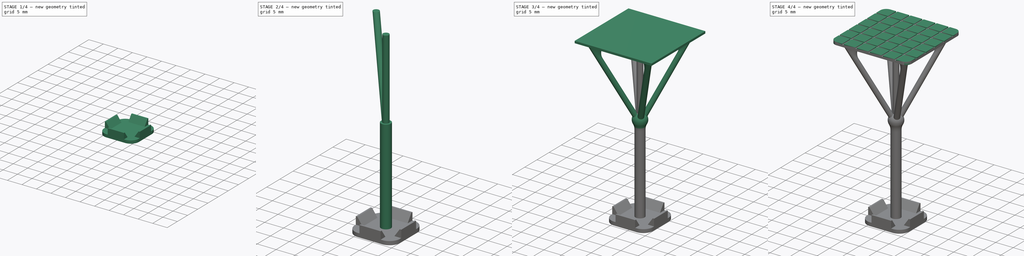
[diagram: build sequence overview — one tinted view per stage of 4, left to right]
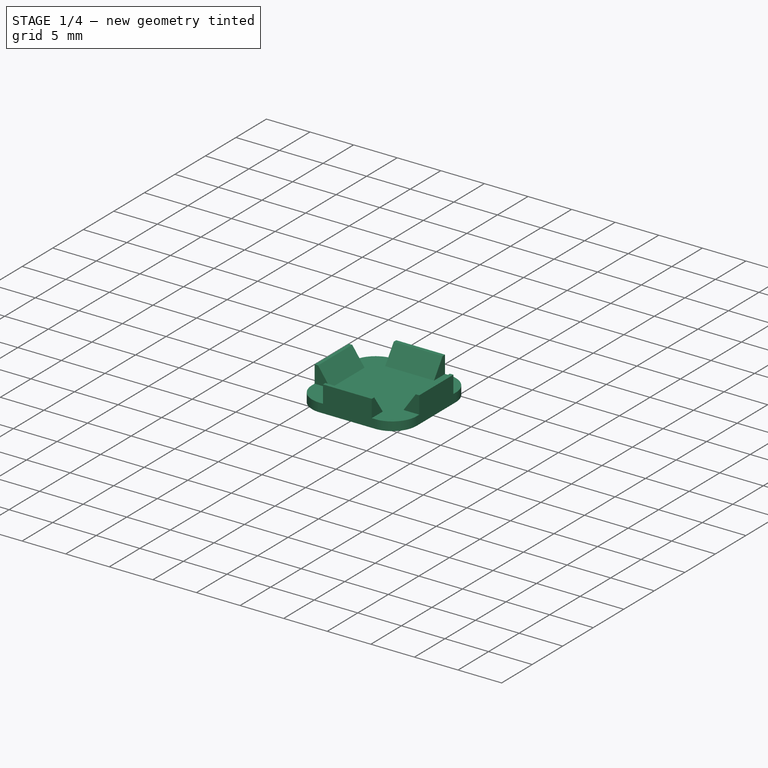
[diagram: stage 1 of 4 — iso view after this stage's code; geometry added in this stage tinted green]
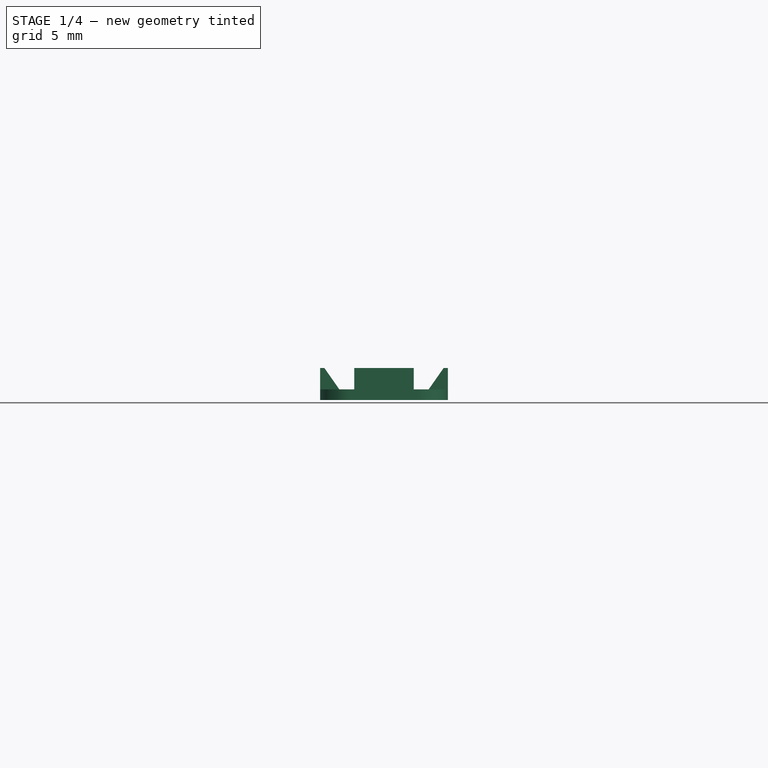
[diagram: stage 1 of 4 — front view after this stage's code; geometry added in this stage tinted green]
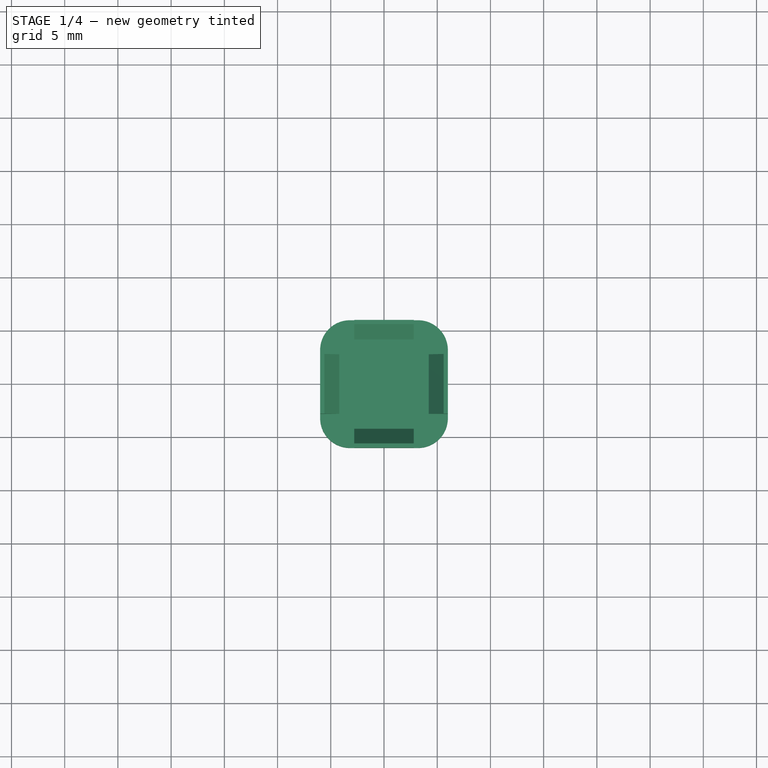
[diagram: stage 1 of 4 — top view after this stage's code; geometry added in this stage tinted green]
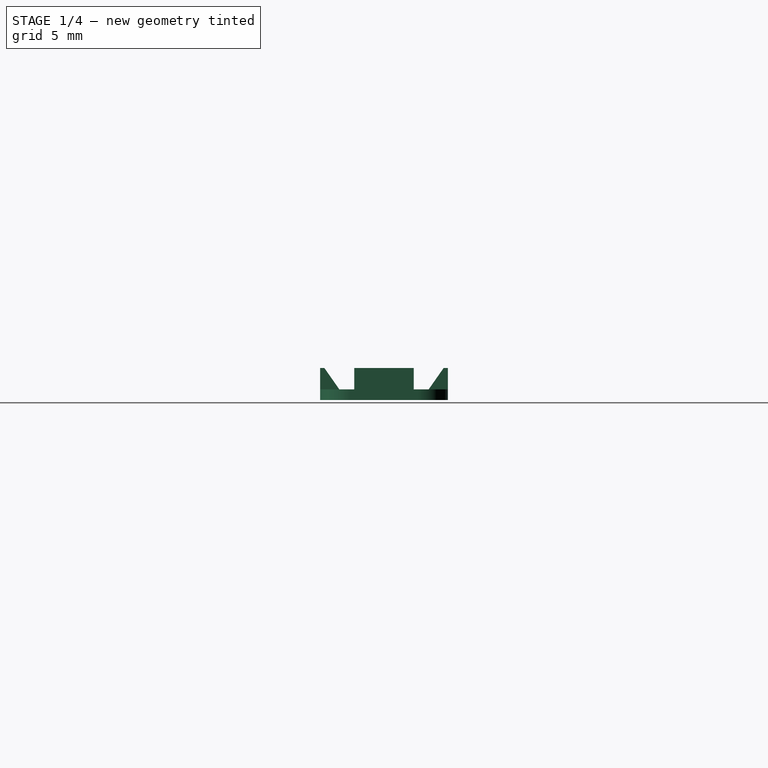
[diagram: stage 1 of 4 — right view after this stage's code; geometry added in this stage tinted green]
FCSTD DOCUMENT  (FreeCAD 1.0R38806 (Git))
Label: VatCleaningTool
License: All rights reserved
LicenseURL: http://en.wikipedia.org/wiki/All_rights_reserved
objects: Sketcher::SketchObject×12, PartDesign::Pad×5, PartDesign::AdditiveLoft×2, PartDesign::PolarPattern×2, PartDesign::LinearPattern×2, Spreadsheet::Sheet×1, PartDesign::Revolution×1, PartDesign::Fillet×1, PartDesign::MultiTransform×1, PartDesign::Pocket×1, PartDesign::Body×1
note: 65 computed .brp shape members not serialized (recipe doc carries the construction recipe); baked Part::Feature solids carry a one-line shape summary decoded from their .brp

FEATURE [Sketcher::SketchObject] Sketch  label="Template"
  ArcFitTolerance = 1e-06
  AttachmentSupport = -> [XY_Plane]
  FullyConstrained = true
  MakeInternals = false
  MapMode = 5
  expr: .Constraints.Width = <<Spreadsheet>>.BottomWidth
  expr: Constraints[44] = <<Spreadsheet>>.TopWidth
  expr: Constraints[71] = <<Spreadsheet>>.PillarFromEdge
  sketch-geometry (35):
    g0: LineSegment StartX=-6 StartY=3.2 StartZ=0 EndX=-6 EndY=-3.2 EndZ=0
    g1: LineSegment StartX=-3.2 StartY=-6 StartZ=0 EndX=3.2 EndY=-6 EndZ=0
    g2: LineSegment StartX=6 StartY=-3.2 StartZ=0 EndX=6 EndY=3.2 EndZ=0
    g3: LineSegment StartX=3.2 StartY=6 StartZ=0 EndX=-3.2 EndY=6 EndZ=0
    g4: LineSegment [constr] StartX=-6 StartY=-1e-16 StartZ=0 EndX=6 EndY=1e-16 EndZ=0
    g5: LineSegment [constr] StartX=0 StartY=6 StartZ=0 EndX=0 EndY=-6 EndZ=0
    g6: LineSegment StartX=-6 StartY=2.8 StartZ=0 EndX=-4.2 EndY=2.8 EndZ=0
    g7: LineSegment StartX=-4.2 StartY=2.8 StartZ=0 EndX=-4.2 EndY=-2.8 EndZ=0
    g8: LineSegment StartX=-4.2 StartY=-2.8 StartZ=0 EndX=-6 EndY=-2.8 EndZ=0
    g9: Circle CenterX=0 CenterY=0 CenterZ=0 NormalX=0 NormalY=0 NormalZ=1 AngleXU=0 Radius=1.3
    g10: Circle CenterX=-0.353553 CenterY=0.353553 CenterZ=0 NormalX=0 NormalY=0 NormalZ=1 AngleXU=0 Radius=0.8
    g11: Circle [constr] CenterX=0 CenterY=0 CenterZ=0 NormalX=0 NormalY=0 NormalZ=1 AngleXU=0 Radius=15.5563
    g12: LineSegment StartX=-11 StartY=11 StartZ=0 EndX=-11 EndY=-11 EndZ=0
    g13: LineSegment StartX=-11 StartY=-11 StartZ=0 EndX=11 EndY=-11 EndZ=0
    g14: LineSegment StartX=11 StartY=-11 StartZ=0 EndX=11 EndY=11 EndZ=0
    g15: LineSegment StartX=11 StartY=11 StartZ=0 EndX=-11 EndY=11 EndZ=0
    g16: GeomPoint [constr] X=-11 Y=11 Z=0
    g17: GeomPoint [constr] X=11 Y=-11 Z=0
    g18: Circle CenterX=-8.6 CenterY=8.6 CenterZ=0 NormalX=0 NormalY=0 NormalZ=1 AngleXU=0 Radius=0.8
    g19: ArcOfCircle CenterX=3.2 CenterY=3.2 CenterZ=0 NormalX=0 NormalY=0 NormalZ=1 AngleXU=0 Radius=2.8 StartAngle=0 EndAngle=1.5708
    g20: GeomPoint [constr] X=6 Y=6 Z=0
    g21: ArcOfCircle CenterX=-3.2 CenterY=3.2 CenterZ=0 NormalX=0 NormalY=0 NormalZ=1 AngleXU=0 Radius=2.8 StartAngle=1.5708 EndAngle=3.14159
    g22: GeomPoint [constr] X=-6 Y=6 Z=0
    g23: ArcOfCircle CenterX=-3.2 CenterY=-3.2 CenterZ=0 NormalX=0 NormalY=0 NormalZ=1 AngleXU=0 Radius=2.8 StartAngle=3.14159 EndAngle=4.71239
    g24: GeomPoint [constr] X=-6 Y=-6 Z=0
    g25: ArcOfCircle CenterX=3.2 CenterY=-3.2 CenterZ=0 NormalX=0 NormalY=0 NormalZ=1 AngleXU=0 Radius=2.8 StartAngle=4.71239 EndAngle=6.28319
    g26: GeomPoint [constr] X=6 Y=-6 Z=0
    g27: LineSegment [constr] StartX=-11 StartY=11 StartZ=0 EndX=11 EndY=-11 EndZ=0
    g28: LineSegment [constr] StartX=11 StartY=11 StartZ=0 EndX=-11 EndY=-11 EndZ=0
    g29: Circle [constr] CenterX=-8.6 CenterY=8.6 CenterZ=0 NormalX=0 NormalY=0 NormalZ=1 AngleXU=0 Radius=2.4
    g30: LineSegment [constr] StartX=-7.8 StartY=8.6 StartZ=0 EndX=-6.2 EndY=8.6 EndZ=0
    g31: Circle CenterX=0 CenterY=0 CenterZ=0 NormalX=0 NormalY=0 NormalZ=1 AngleXU=0 Radius=0.8
    g32: Circle CenterX=8.6 CenterY=8.6 CenterZ=0 NormalX=0 NormalY=0 NormalZ=1 AngleXU=0 Radius=0.8
    g33: Circle CenterX=8.6 CenterY=-8.6 CenterZ=0 NormalX=0 NormalY=0 NormalZ=1 AngleXU=0 Radius=0.8
    g34: Circle CenterX=-8.6 CenterY=-8.6 CenterZ=0 NormalX=0 NormalY=0 NormalZ=1 AngleXU=0 Radius=0.8
  constraints (84):
    c: Vertical(g0)
    c: Vertical(g2)
    c: Horizontal(g1)
    c: Horizontal(g3)
    c: PointOnObject(g6,g0)
    c: Horizontal(g6)
    c: Coincident(g6,g7)
    c: Vertical(g7)
    c: Coincident(g7,g8)
    c: Horizontal(g8)
    c: Symmetric(g8,g6,g4)
    c: DistanceX(g6,g6) = 1.8
    c: Symmetric(g5,g5,g9)
    c: Diameter(g9) = 2.6  'LeadPillarDiameter'
    c: Tangent(g10,g9)
    c: Coincident(g11,g9)
    c: Vertical(g12)
    c: Vertical(g14)
    c: Horizontal(g13)
    c: Horizontal(g15)
    c: PointOnObject(g16,g12)
    c: PointOnObject(g16,g15)
    c: PointOnObject(g17,g13)
    c: PointOnObject(g17,g14)
    c: Equal(g12,g15)
    c: PointOnObject(g20,g2)
    c: PointOnObject(g20,g3)
    c: Tangent(g2,g19) = -1.5708
    c: Tangent(g3,g19) = -1.5708
    c: PointOnObject(g22,g0)
    c: PointOnObject(g22,g3)
    c: Tangent(g0,g21) = -1.5708
    c: Tangent(g3,g21) = -1.5708
    c: PointOnObject(g24,g0)
    c: PointOnObject(g24,g1)
    c: Tangent(g0,g23) = -1.5708
    c: Tangent(g1,g23) = -1.5708
    c: PointOnObject(g26,g1)
    c: PointOnObject(g26,g2)
    c: Tangent(g1,g25) = -1.5708
    c: Tangent(g2,g25) = -1.5708
    c: Equal(g23,g25)
    c: Equal(g25,g21)
    c: Equal(g21,g19)
    c: DistanceX(g0,g2) = 12
    c: Equal(g3,g0)
    c: Symmetric(g0,g0,g4)
    c: Symmetric(g3,g3,g5)
    c: Symmetric(g2,g2,g4)
    c: Symmetric(g1,g1,g5)
    c: Coincident(g9,g-1)  '__ANCHOR__'
    c: Coincident(g13,g12)
    c: Coincident(g13,g14)
    c: Coincident(g15,g14)
    c: Coincident(g12,g15)
    c: PointOnObject(g16,g11)
    c: PointOnObject(g12,g11)
    c: PointOnObject(g17,g11)
    c: Coincident(g27,g16)
    c: Coincident(g28,g12)
    c: Coincident(g27,g17)
    c: PointOnObject(g18,g27)
    c: Coincident(g28,g14)
    c: DistanceX(g15,g15) = 22  'Width'
    c: Diameter(g10) = 1.6
    c: Equal(g10,g18)
    c: PointOnObject(g10,g27)
    c: Coincident(g29,g18)
    c: PointOnObject(g30,g18)
    c: PointOnObject(g30,g29)
    c: Horizontal(g30)
    c: DistanceX(g30,g30) = 1.6
    c: Tangent(g29,g15)
    c: PointOnObject(g18,g30)
    c: Radius(g21) = 2.8
    c: Equal(g18,g32)
    c: Equal(g32,g33)
    c: Equal(g33,g34)
    c: Symmetric(g18,g32,g5)
    c: Symmetric(g32,g33,g4)
    c: Symmetric(g33,g34,g5)
    c: Equal(g34,g31)
    c: Coincident(g9,g31)
    c: DistanceY(g8,g6) = 5.6
FEATURE [Sketcher::SketchObject] Sketch001
  ArcFitTolerance = 1e-06
  AttachmentSupport = -> [XY_Plane]
  ExternalGeometry = -> [Sketch]
  FullyConstrained = true
  MakeInternals = false
  MapMode = 5
  sketch-geometry (8):
    g0: ArcOfCircle CenterX=-3.2 CenterY=3.2 CenterZ=0 NormalX=0 NormalY=0 NormalZ=1 AngleXU=0 Radius=2.8 StartAngle=1.5708 EndAngle=3.14159
    g1: ArcOfCircle CenterX=3.2 CenterY=3.2 CenterZ=0 NormalX=0 NormalY=0 NormalZ=1 AngleXU=0 Radius=2.8 StartAngle=8.489e-13 EndAngle=1.5708
    g2: ArcOfCircle CenterX=3.2 CenterY=-3.2 CenterZ=0 NormalX=0 NormalY=0 NormalZ=1 AngleXU=0 Radius=2.8 StartAngle=4.71239 EndAngle=6.28319
    g3: ArcOfCircle CenterX=-3.2 CenterY=-3.2 CenterZ=0 NormalX=0 NormalY=0 NormalZ=1 AngleXU=0 Radius=2.8 StartAngle=3.14159 EndAngle=4.71239
    g4: LineSegment StartX=-6 StartY=-3.2 StartZ=0 EndX=-6 EndY=3.2 EndZ=0
    g5: LineSegment StartX=-3.2 StartY=6 StartZ=0 EndX=3.2 EndY=6 EndZ=0
    g6: LineSegment StartX=6 StartY=3.2 StartZ=0 EndX=6 EndY=-3.2 EndZ=0
    g7: LineSegment StartX=3.2 StartY=-6 StartZ=0 EndX=-3.2 EndY=-6 EndZ=0
  constraints (20):
    c: Coincident(g0,g-3)
    c: Coincident(g0,g-3)
    c: Coincident(g1,g-4)
    c: Coincident(g1,g-4)
    c: Coincident(g2,g-5)
    c: Coincident(g2,g-5)
    c: Coincident(g3,g-6)
    c: Coincident(g3,g-6)
    c: Equal(g0,g-3)
    c: Equal(g1,g-4)
    c: Equal(g-6,g3)
    c: Coincident(g4,g3)
    c: Coincident(g4,g0)
    c: Coincident(g5,g0)
    c: Coincident(g5,g1)
    c: Coincident(g1,g6)
    c: Coincident(g2,g6)
    c: Coincident(g2,g7)
    c: Coincident(g3,g7)
    c: Equal(g-5,g2)
FEATURE [PartDesign::Pad] Pad
  Direction = (0,0,1)
  Length = 1
  Length2 = 10
  Profile = -> Sketch001
  ReferenceAxis = -> Sketch001 [N_Axis]
  Suppressed = false
  Type = 0
FEATURE [Sketcher::SketchObject] Sketch002
  ArcFitTolerance = 1e-06
  AttachmentSupport = -> [Pad]
  ExternalGeometry = -> [Sketch]
  FullyConstrained = true
  MakeInternals = false
  MapMode = 5
  Placement = pos=(0,0,1) rot=(0,0,1;0rad)
  sketch-geometry (4):
    g0: LineSegment StartX=-6 StartY=2.8 StartZ=0 EndX=-4.2 EndY=2.8 EndZ=0
    g1: LineSegment StartX=-4.2 StartY=2.8 StartZ=0 EndX=-4.2 EndY=-2.8 EndZ=0
    g2: LineSegment StartX=-4.2 StartY=-2.8 StartZ=0 EndX=-6 EndY=-2.8 EndZ=0
    g3: LineSegment StartX=-6 StartY=-2.8 StartZ=0 EndX=-6 EndY=2.8 EndZ=0
  constraints (8):
    c: Coincident(g-3,g0)
    c: Coincident(g0,g-3)
    c: Coincident(g0,g1)
    c: Coincident(g1,g-4)
    c: Coincident(g1,g2)
    c: Coincident(g2,g-4)
    c: Coincident(g2,g3)
    c: Coincident(g3,g0)
FEATURE [Sketcher::SketchObject] Sketch003
  ArcFitTolerance = 1e-06
  AttachmentOffset = pos=(0,0,2) rot=(0,0,1;0rad)
  AttachmentSupport = -> [Pad]
  ExternalGeometry = -> [Sketch]
  FullyConstrained = true
  MakeInternals = false
  MapMode = 5
  Placement = pos=(0,0,3) rot=(0,0,1;0rad)
  sketch-geometry (4):
    g0: LineSegment StartX=-6 StartY=2.8 StartZ=0 EndX=-5.6 EndY=2.8 EndZ=0
    g1: LineSegment StartX=-5.6 StartY=2.8 StartZ=0 EndX=-5.6 EndY=-2.8 EndZ=0
    g2: LineSegment StartX=-5.6 StartY=-2.8 StartZ=0 EndX=-6 EndY=-2.8 EndZ=0
    g3: LineSegment StartX=-6 StartY=-2.8 StartZ=0 EndX=-6 EndY=2.8 EndZ=0
  constraints (10):
    c: Coincident(g-3,g0)
    c: Coincident(g2,g-4)
    c: Coincident(g2,g3)
    c: Coincident(g3,g0)
    c: PointOnObject(g2,g-4)
    c: PointOnObject(g0,g-3)
    c: Coincident(g1,g0)
    c: Coincident(g1,g2)
    c: DistanceX(g0,g0) = 0.4
    c: Parallel(g1,g3)
FEATURE [PartDesign::AdditiveLoft] AdditiveLoft
  BaseFeature = -> Pad
  Closed = false
  Profile = -> Sketch002
  Ruled = false
  Sections = -> [Sketch003]
  Suppressed = false
FEATURE [PartDesign::PolarPattern] PolarPattern
  Angle = 360
  Axis = -> Sketch002 [N_Axis]
  BaseFeature = -> AdditiveLoft
  Mode = 0
  Occurrences = 4
  Offset = 120
  Originals = -> [AdditiveLoft]
  Suppressed = false
  TransformMode = 0
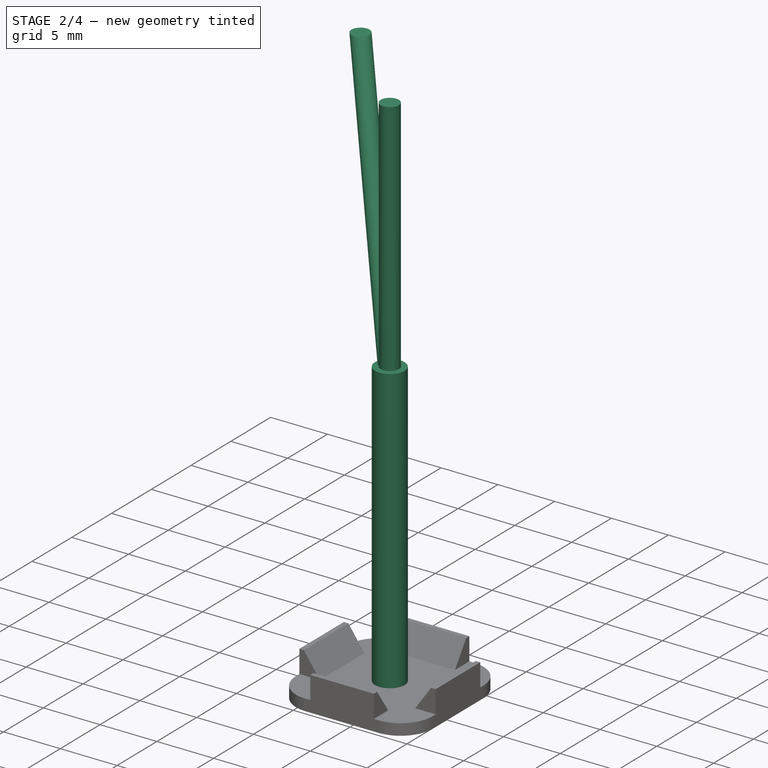
[diagram: stage 2 of 4 — iso view after this stage's code; geometry added in this stage tinted green]
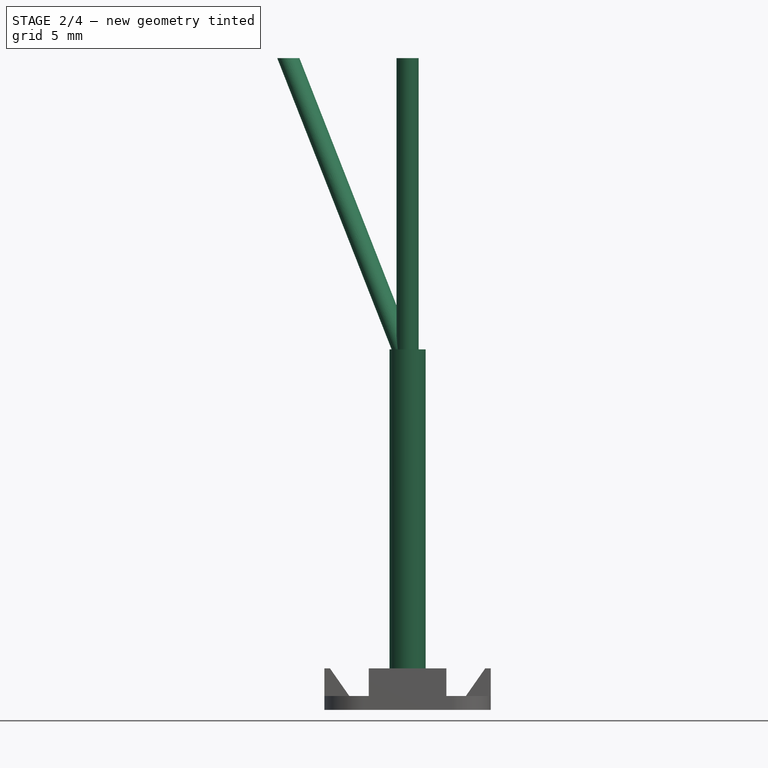
[diagram: stage 2 of 4 — front view after this stage's code; geometry added in this stage tinted green]
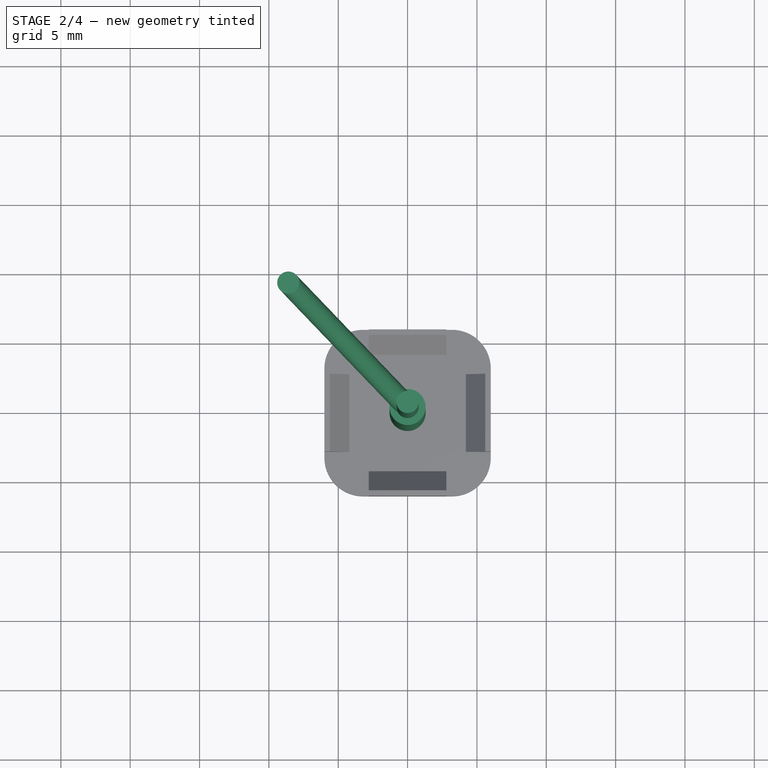
[diagram: stage 2 of 4 — top view after this stage's code; geometry added in this stage tinted green]
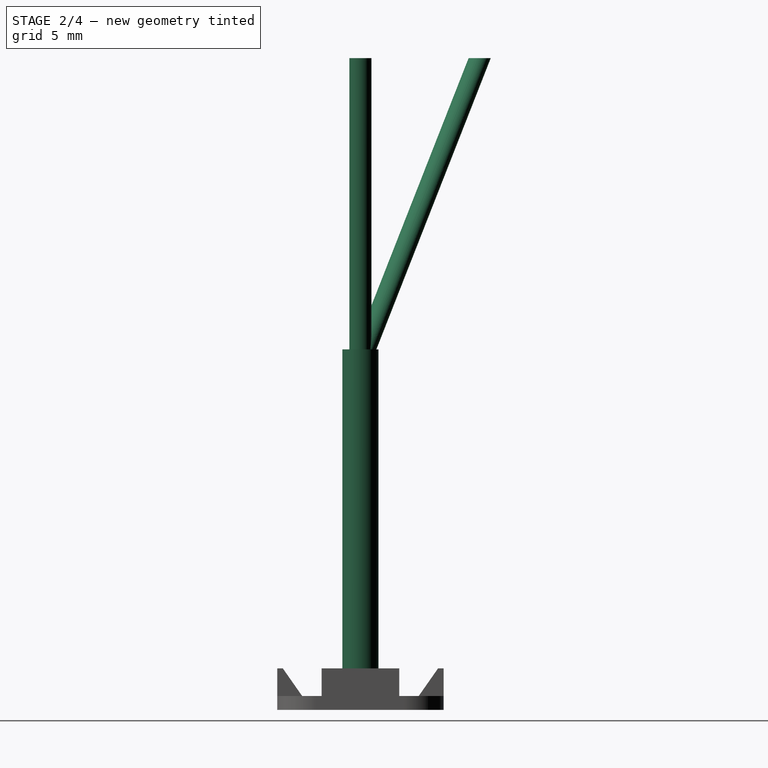
[diagram: stage 2 of 4 — right view after this stage's code; geometry added in this stage tinted green]
FEATURE [Sketcher::SketchObject] Sketch004
  ArcFitTolerance = 1e-06
  AttachmentSupport = -> [PolarPattern]
  ExternalGeometry = -> [Sketch]
  FullyConstrained = true
  MakeInternals = false
  MapMode = 5
  Placement = pos=(0,0,1) rot=(0,0,1;0rad)
  sketch-geometry (1):
    g0: Circle CenterX=0 CenterY=0 CenterZ=0 NormalX=0 NormalY=0 NormalZ=1 AngleXU=0 Radius=1.3
  constraints (2):
    c: Equal(g0,g-3)
    c: Coincident(g0,g-3)
FEATURE [PartDesign::Pad] Pad001
  BaseFeature = -> PolarPattern
  Direction = (0,0,1)
  Length = 25
  Length2 = 10
  Profile = -> Sketch004
  ReferenceAxis = -> Sketch004 [N_Axis]
  Suppressed = false
  Type = 0
FEATURE [Sketcher::SketchObject] Sketch005
  ArcFitTolerance = 1e-06
  AttachmentSupport = -> [Pad001]
  ExternalGeometry = -> [Sketch]
  FullyConstrained = true
  MakeInternals = false
  MapMode = 5
  Placement = pos=(0,0,26) rot=(0,0,1;0rad)
  sketch-geometry (1):
    g0: Circle CenterX=-0.353553 CenterY=0.353553 CenterZ=0 NormalX=0 NormalY=0 NormalZ=1 AngleXU=0 Radius=0.8
  constraints (2):
    c: Coincident(g0,g-3)
    c: Equal(g-3,g0)
FEATURE [Sketcher::SketchObject] Sketch006
  ArcFitTolerance = 1e-06
  AttachmentOffset = pos=(0,0,21) rot=(0,0,1;0rad)
  AttachmentSupport = -> [Pad001]
  ExternalGeometry = -> [Sketch]
  FullyConstrained = true
  MakeInternals = false
  MapMode = 5
  Placement = pos=(0,0,47) rot=(0,0,1;0rad)
  expr: .AttachmentOffset.Base.z = <<Pad003>>.Length
  sketch-geometry (1):
    g0: Circle CenterX=-8.6 CenterY=8.6 CenterZ=0 NormalX=0 NormalY=0 NormalZ=1 AngleXU=0 Radius=0.8
  constraints (2):
    c: Equal(g0,g-3)
    c: Coincident(g0,g-3)
FEATURE [Sketcher::SketchObject] Sketch007
  ArcFitTolerance = 1e-06
  AttachmentSupport = -> [XZ_Plane]
  FullyConstrained = true
  MakeInternals = false
  MapMode = 5
  Placement = pos=(0,0,0) rot=(1,0,0;1.5708rad)
  expr: Constraints[1] = Pad.Length + <<Pad001>>.Length
  expr: Constraints[6] = <<Template>>.Constraints.LeadPillarDiameter * 1.5
  sketch-geometry (2):
    g0: ArcOfCircle CenterX=0 CenterY=26 CenterZ=0 NormalX=0 NormalY=0 NormalZ=1 AngleXU=0 Radius=1.95 StartAngle=1.5708 EndAngle=4.71239
    g1: LineSegment StartX=1e-16 StartY=27.95 StartZ=0 EndX=1e-16 EndY=24.05 EndZ=0
  constraints (7):
    c: PointOnObject(g0,g-2)
    c: DistanceY(g-1,g0) = 26
    c: Vertical(g1)
    c: PointOnObject(g1,g-2)
    c: Coincident(g0,g1)
    c: Coincident(g0,g1)
    c: Diameter(g0) = 3.9
FEATURE [Sketcher::SketchObject] Sketch009
  ArcFitTolerance = 1e-06
  AttachmentSupport = -> [Pad001]
  ExternalGeometry = -> [Sketch]
  FullyConstrained = true
  MakeInternals = false
  MapMode = 5
  Placement = pos=(0,0,26) rot=(0,0,1;0rad)
  sketch-geometry (1):
    g0: Circle CenterX=0 CenterY=0 CenterZ=0 NormalX=0 NormalY=0 NormalZ=1 AngleXU=0 Radius=0.8
  constraints (2):
    c: Equal(g0,g-4)
    c: Coincident(g-3,g0)
FEATURE [PartDesign::Pad] Pad003
  BaseFeature = -> Pad001
  Direction = (0,0,1)
  Length = 21
  Length2 = 10
  Profile = -> Sketch009
  ReferenceAxis = -> Sketch009 [N_Axis]
  Suppressed = false
  Type = 0
FEATURE [PartDesign::AdditiveLoft] AdditiveLoft001
  BaseFeature = -> Pad003
  Closed = false
  Profile = -> Sketch005
  Ruled = false
  Sections = -> [Sketch006]
  Suppressed = false
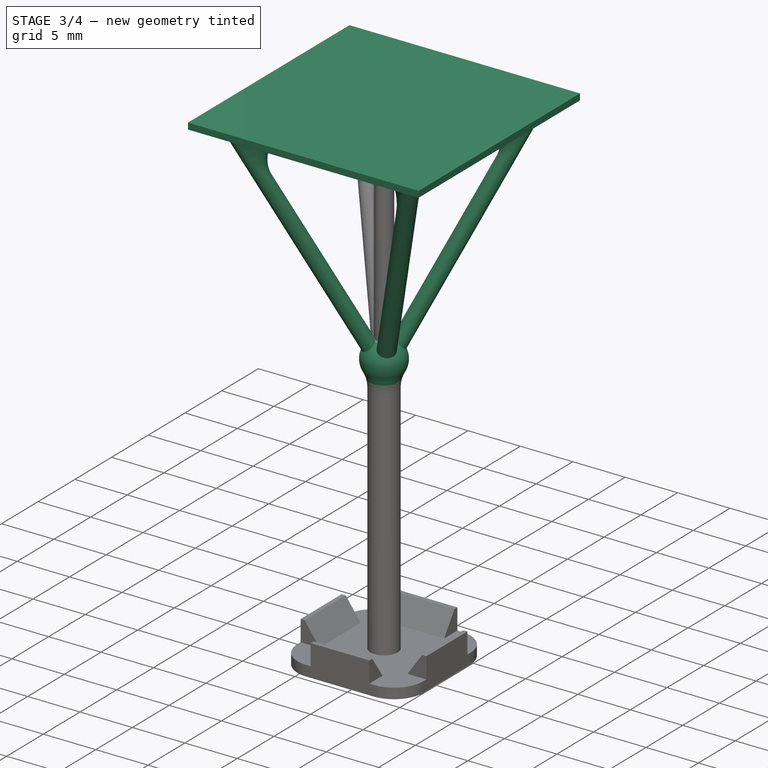
[diagram: stage 3 of 4 — iso view after this stage's code; geometry added in this stage tinted green]
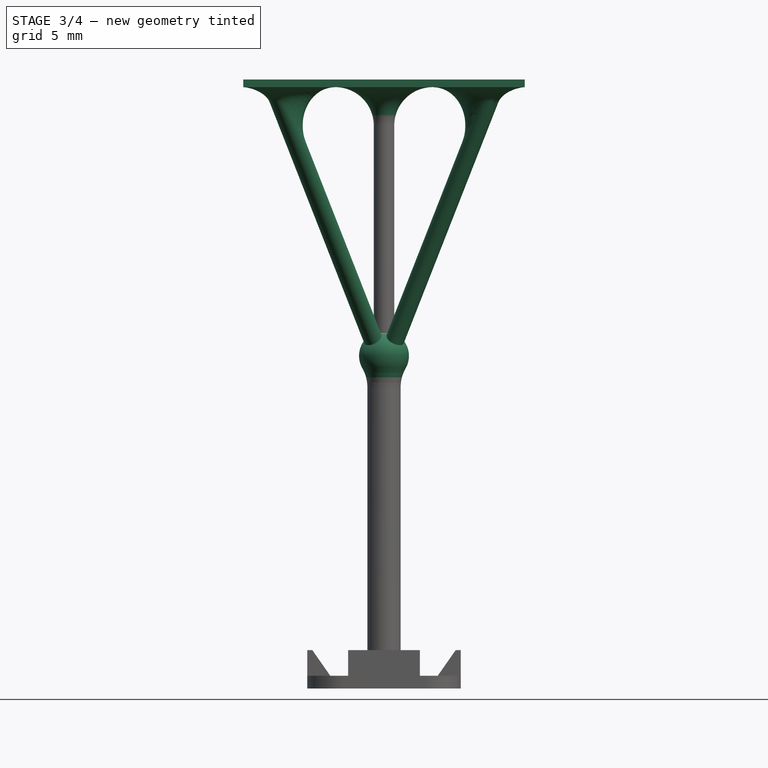
[diagram: stage 3 of 4 — front view after this stage's code; geometry added in this stage tinted green]
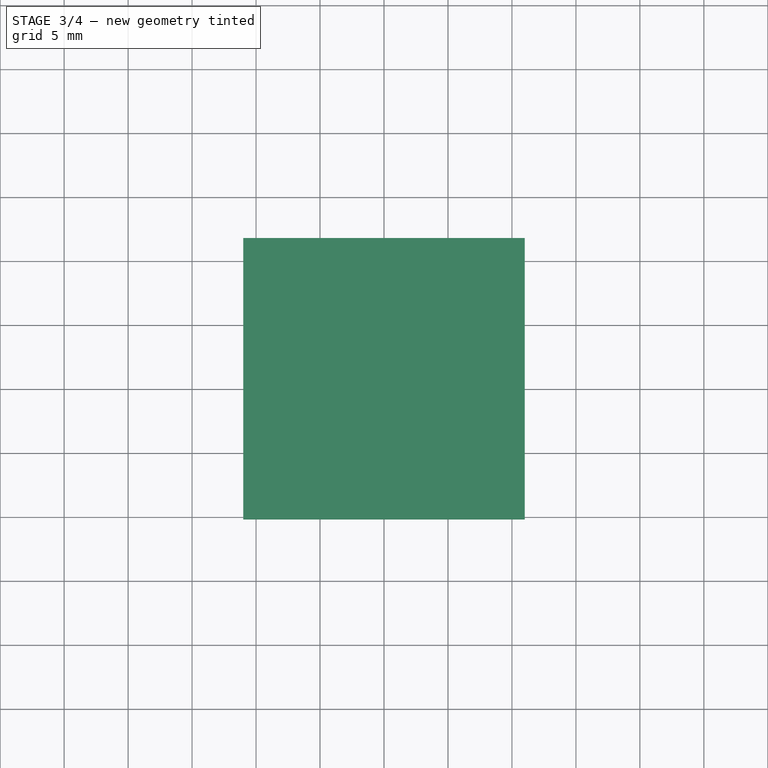
[diagram: stage 3 of 4 — top view after this stage's code; geometry added in this stage tinted green]
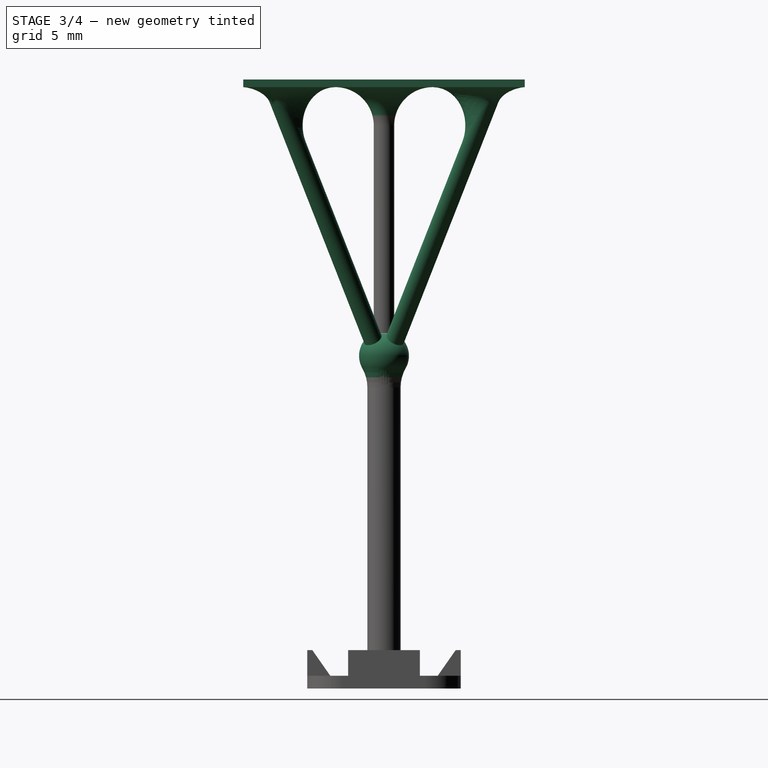
[diagram: stage 3 of 4 — right view after this stage's code; geometry added in this stage tinted green]
FEATURE [Spreadsheet::Sheet] Spreadsheet
  cells = B2='TopWidth; C2(TopWidth)==12 mm; B3='BottomWidth; C3(BottomWidth)==22 mm; B4='PillarFromEdge; C4(PillarFromEdge)=1.6; B5='BottomBlocks; C5(BottomBlocks)=6; B6='BottomBlockGap; C6(BottomBlockGap)==0.4 mm; B7='BottomBlockWidth; C7(BottomBlockWidth)==(BottomWidth - (BottomBlocks - 1) * BottomBlockGap) / BottomBlocks
FEATURE [PartDesign::PolarPattern] PolarPattern001
  Angle = 360
  Axis = -> Sketch005 [N_Axis]
  BaseFeature = -> AdditiveLoft001
  Mode = 0
  Occurrences = 4
  Offset = 120
  Originals = -> [AdditiveLoft001]
  Suppressed = false
  TransformMode = 0
FEATURE [PartDesign::Revolution] Revolution
  Angle = 360
  Angle2 = 60
  Axis = (0,2e-16,1)
  Base = (0,0,0)
  BaseFeature = -> PolarPattern001
  Profile = -> Sketch007
  ReferenceAxis = -> Sketch007 [V_Axis]
  Suppressed = false
  Type = 0
FEATURE [Sketcher::SketchObject] Sketch008
  ArcFitTolerance = 1e-06
  AttachmentSupport = -> [Revolution]
  ExternalGeometry = -> [Sketch]
  FullyConstrained = true
  MakeInternals = false
  MapMode = 5
  Placement = pos=(0,0,47) rot=(0,0,1;0rad)
  sketch-geometry (4):
    g0: LineSegment StartX=-11 StartY=11 StartZ=0 EndX=11 EndY=11 EndZ=0
    g1: LineSegment StartX=11 StartY=11 StartZ=0 EndX=11 EndY=-11 EndZ=0
    g2: LineSegment StartX=11 StartY=-11 StartZ=0 EndX=-11 EndY=-11 EndZ=0
    g3: LineSegment StartX=-11 StartY=-11 StartZ=0 EndX=-11 EndY=11 EndZ=0
  constraints (8):
    c: Coincident(g-3,g0)
    c: Coincident(g0,g-4)
    c: Coincident(g0,g1)
    c: Coincident(g1,g-4)
    c: Coincident(g1,g2)
    c: Coincident(g2,g-3)
    c: Coincident(g2,g3)
    c: Coincident(g3,g0)
FEATURE [PartDesign::Pad] Pad002
  BaseFeature = -> Revolution
  Direction = (0,0,1)
  Length = 0.6
  Length2 = 10
  Profile = -> Sketch008
  ReferenceAxis = -> Sketch008 [N_Axis]
  Suppressed = false
  Type = 0
FEATURE [Sketcher::SketchObject] Sketch010
  ArcFitTolerance = 1e-06
  AttachmentSupport = -> [Pad002]
  ExternalGeometry = -> [Sketch]
  FullyConstrained = true
  MakeInternals = false
  MapMode = 5
  Placement = pos=(0,0,47.6) rot=(0,0,1;0rad)
  expr: Constraints[10] = <<Spreadsheet>>.BottomBlockWidth
  sketch-geometry (4):
    g0: LineSegment StartX=-11 StartY=11 StartZ=0 EndX=-11 EndY=7.66667 EndZ=0
    g1: LineSegment StartX=-11 StartY=7.66667 StartZ=0 EndX=-7.66667 EndY=7.66667 EndZ=0
    g2: LineSegment StartX=-7.66667 StartY=7.66667 StartZ=0 EndX=-7.66667 EndY=11 EndZ=0
    g3: LineSegment StartX=-7.66667 StartY=11 StartZ=0 EndX=-11 EndY=11 EndZ=0
  constraints (11):
    c: Coincident(g0,g1)
    c: Coincident(g1,g2)
    c: Coincident(g2,g3)
    c: Coincident(g3,g0)
    c: Vertical(g0)
    c: Vertical(g2)
    c: Horizontal(g1)
    c: Horizontal(g3)
    c: Coincident(g0,g-5)
    c: Equal(g0,g3)
    c: DistanceX(g3,g3) = 3.33333
FEATURE [PartDesign::LinearPattern] LinearPattern
  Direction = -> Sketch010 [H_Axis]
  Length = 18.6667
  Mode = 0
  Occurrences = 6
  Offset = 3.73333
  Suppressed = false
  TransformMode = 0
  expr: Length = <<Spreadsheet>>.BottomWidth - <<Spreadsheet>>.BottomBlockWidth
  expr: Occurrences = <<Spreadsheet>>.BottomBlocks
FEATURE [PartDesign::LinearPattern] LinearPattern001
  Direction = -> Sketch010 [V_Axis]
  Length = 18.6667
  Mode = 0
  Occurrences = 6
  Offset = 3.73333
  Reversed = true
  Suppressed = false
  TransformMode = 0
  expr: Length = <<Spreadsheet>>.BottomWidth - <<Spreadsheet>>.BottomBlockWidth
  expr: Occurrences = <<Spreadsheet>>.BottomBlocks
FEATURE [PartDesign::Fillet] Fillet
  Base = -> Pad002 [Edge12,Edge15,Edge13,Edge16,Edge14,Edge42]
  BaseFeature = -> Pad002
  Radius = 3
  Refine = true
  SupportTransform = false
  Suppressed = false
  UseAllEdges = false
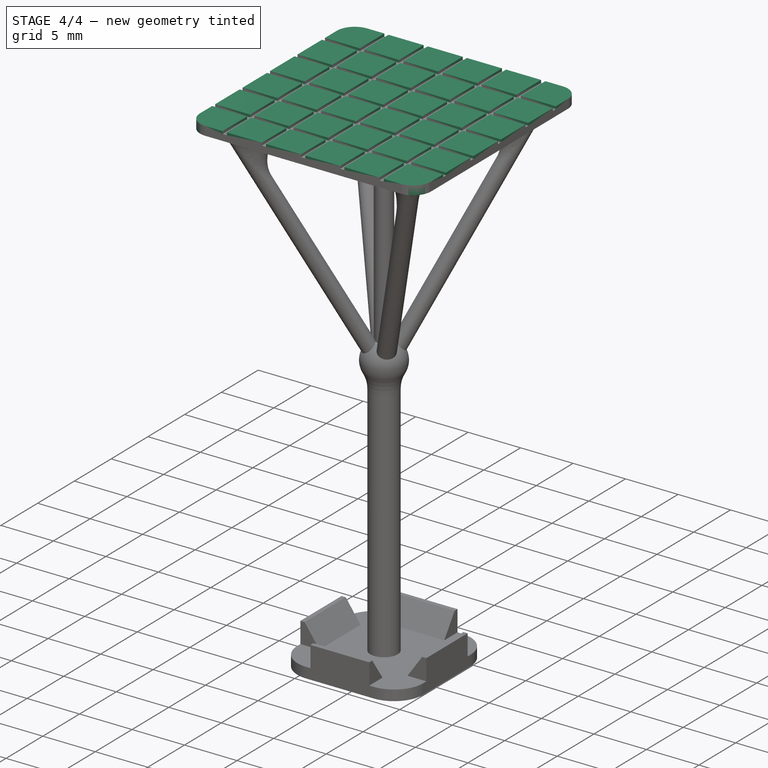
[diagram: stage 4 of 4 — iso view after this stage's code; geometry added in this stage tinted green]
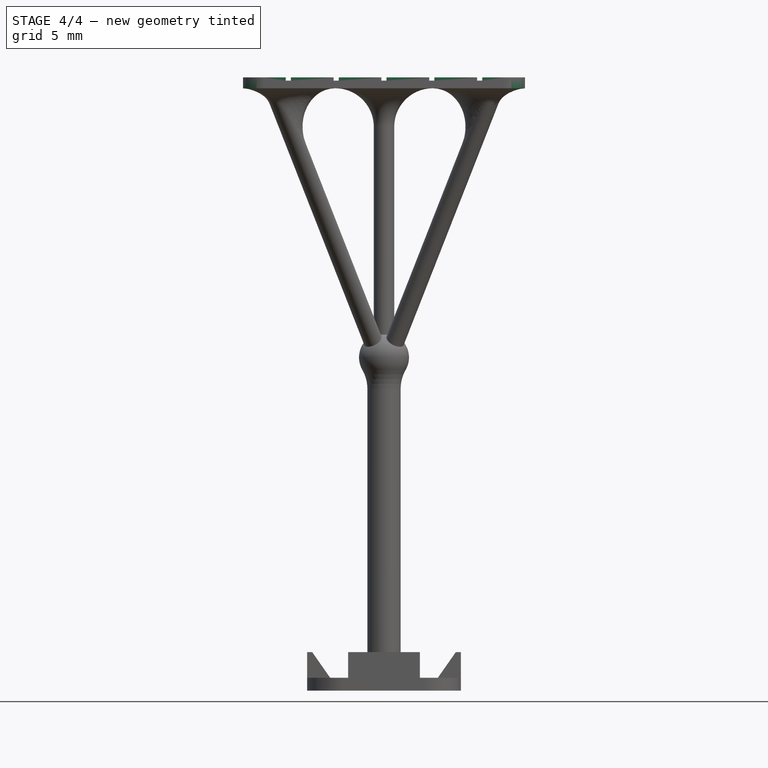
[diagram: stage 4 of 4 — front view after this stage's code; geometry added in this stage tinted green]
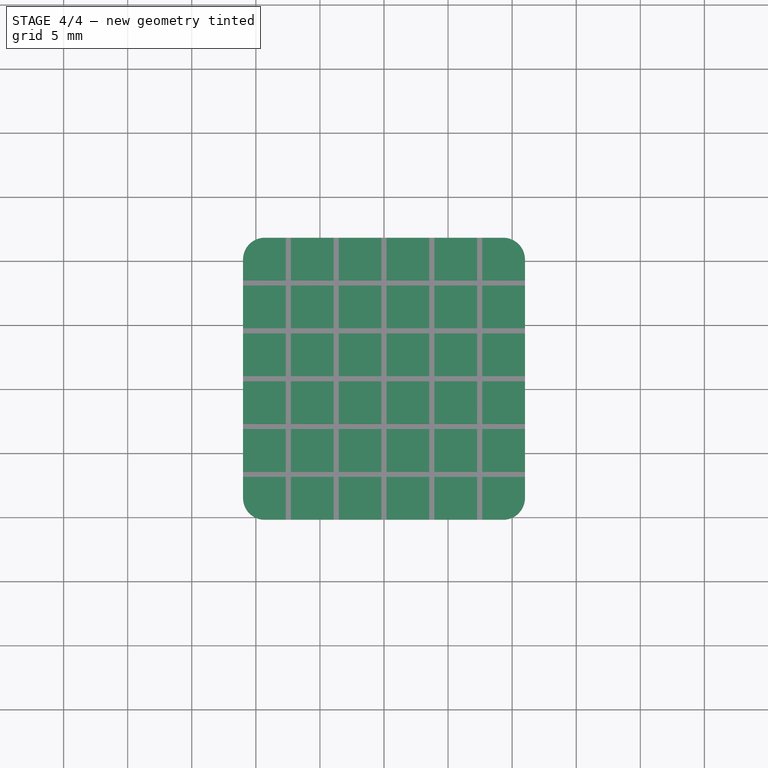
[diagram: stage 4 of 4 — top view after this stage's code; geometry added in this stage tinted green]
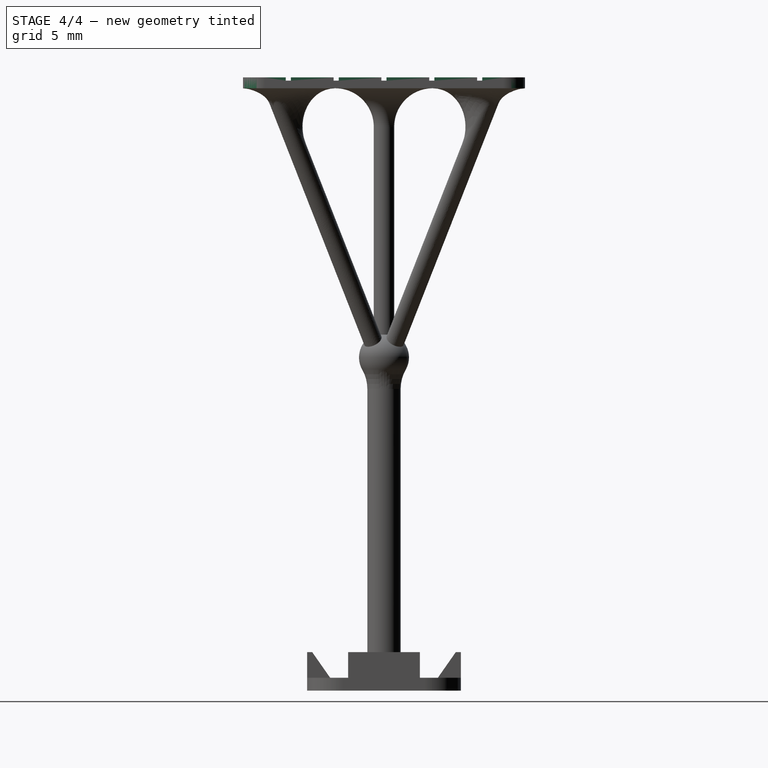
[diagram: stage 4 of 4 — right view after this stage's code; geometry added in this stage tinted green]
FEATURE [PartDesign::Pad] Pad004
  BaseFeature = -> Fillet
  Direction = (0,0,1)
  Length = 0.25
  Length2 = 10
  Profile = -> Sketch010
  ReferenceAxis = -> Sketch010 [N_Axis]
  Suppressed = false
  Type = 0
FEATURE [Sketcher::SketchObject] Sketch011
  ArcFitTolerance = 1e-06
  AttachmentSupport = -> [Pad004]
  ExternalGeometry = -> [Sketch]
  FullyConstrained = true
  MakeInternals = false
  MapMode = 5
  Placement = pos=(0,0,47.85) rot=(0,0,1;0rad)
  expr: .Constraints.Width = <<Spreadsheet>>.BottomWidth + 2 mm
  expr: Constraints[35] = .Constraints.Rc + (.Constraints.Width - <<Spreadsheet>>.BottomWidth) / 2
  sketch-geometry (15):
    g0: LineSegment StartX=-11 StartY=9.3 StartZ=0 EndX=-11 EndY=-9.3 EndZ=0
    g1: LineSegment StartX=-9.3 StartY=-11 StartZ=0 EndX=9.3 EndY=-11 EndZ=0
    g2: LineSegment StartX=11 StartY=-9.3 StartZ=0 EndX=11 EndY=9.3 EndZ=0
    g3: LineSegment StartX=9.3 StartY=11 StartZ=0 EndX=-9.3 EndY=11 EndZ=0
    g4: ArcOfCircle CenterX=-9.3 CenterY=9.3 CenterZ=0 NormalX=0 NormalY=0 NormalZ=1 AngleXU=0 Radius=1.7 StartAngle=1.5708 EndAngle=3.14159
    g5: ArcOfCircle CenterX=-9.3 CenterY=-9.3 CenterZ=0 NormalX=0 NormalY=0 NormalZ=1 AngleXU=0 Radius=1.7 StartAngle=3.14159 EndAngle=4.71239
    g6: ArcOfCircle CenterX=9.3 CenterY=-9.3 CenterZ=0 NormalX=0 NormalY=0 NormalZ=1 AngleXU=0 Radius=1.7 StartAngle=4.71239 EndAngle=6.28319
    g7: ArcOfCircle CenterX=9.3 CenterY=9.3 CenterZ=0 NormalX=0 NormalY=0 NormalZ=1 AngleXU=0 Radius=1.7 StartAngle=0 EndAngle=1.5708
    g8: GeomPoint [constr] X=-11 Y=11 Z=0
    g9: GeomPoint [constr] X=11 Y=-11 Z=0
    g10: LineSegment StartX=-12 StartY=12 StartZ=0 EndX=-12 EndY=-12 EndZ=0
    g11: LineSegment StartX=-12 StartY=-12 StartZ=0 EndX=12 EndY=-12 EndZ=0
    g12: LineSegment StartX=12 StartY=-12 StartZ=0 EndX=12 EndY=12 EndZ=0
    g13: LineSegment StartX=12 StartY=12 StartZ=0 EndX=-12 EndY=12 EndZ=0
    g14: Circle [constr] CenterX=-9.3 CenterY=9.3 CenterZ=0 NormalX=0 NormalY=0 NormalZ=1 AngleXU=0 Radius=2.7
  constraints (38):
    c: Tangent(g0,g4) = -1.5708
    c: Tangent(g0,g5) = -1.5708
    c: Tangent(g1,g5) = -1.5708
    c: Tangent(g1,g6) = -1.5708
    c: Tangent(g2,g6) = -1.5708
    c: Tangent(g2,g7) = -1.5708
    c: Tangent(g3,g7) = -1.5708
    c: Tangent(g3,g4) = -1.5708
    c: Vertical(g0)
    c: Vertical(g2)
    c: Horizontal(g1)
    c: Horizontal(g3)
    c: Equal(g4,g5)
    c: Equal(g5,g6)
    c: Equal(g6,g7)
    c: PointOnObject(g8,g0)
    c: PointOnObject(g8,g3)
    c: PointOnObject(g9,g1)
    c: PointOnObject(g9,g2)
    c: PointOnObject(g0,g-4)
    c: PointOnObject(g3,g-3)
    c: PointOnObject(g2,g-6)
    c: PointOnObject(g1,g-5)
    c: Coincident(g10,g11)
    c: Coincident(g11,g12)
    c: Coincident(g12,g13)
    c: Coincident(g13,g10)
    c: Vertical(g10)
    c: Vertical(g12)
    c: Horizontal(g11)
    c: Horizontal(g13)
    c: Radius(g4) = 1.7  'Rc'
    c: DistanceX(g13,g13) = 24  'Width'
    c: Equal(g10,g13)
    c: Coincident(g14,g4)
    c: Radius(g14) = 2.7
    c: Tangent(g14,g13)
    c: Tangent(g10,g14)
FEATURE [PartDesign::MultiTransform] MultiTransform
  BaseFeature = -> Pad004
  Originals = -> [Pad004]
  Suppressed = false
  TransformMode = 0
  Transformations = -> [LinearPattern,LinearPattern001]
FEATURE [PartDesign::Pocket] Pocket
  BaseFeature = -> MultiTransform
  Direction = (0,0,-1)
  Length = 5
  Length2 = 5
  Profile = -> Sketch011
  ReferenceAxis = -> Sketch011 [N_Axis]
  Refine = true
  Suppressed = false
  Type = 1
FEATURE [PartDesign::Body] Body
  AllowCompound = false
  Group = -> [Sketch,Sketch001,Pad,Sketch002,Sketch003,AdditiveLoft,PolarPattern,Sketch004,Pad001,Sketch005,Sketch006,Sketch009,Pad003,AdditiveLoft001,Sketch007,PolarPattern001,Revolution,Sketch008,Pad002,Sketch010,Fillet,Pad004,Sketch011,MultiTransform,LinearPattern,LinearPattern001,Pocket]
  Origin = -> Origin
  Tip = -> Pocket
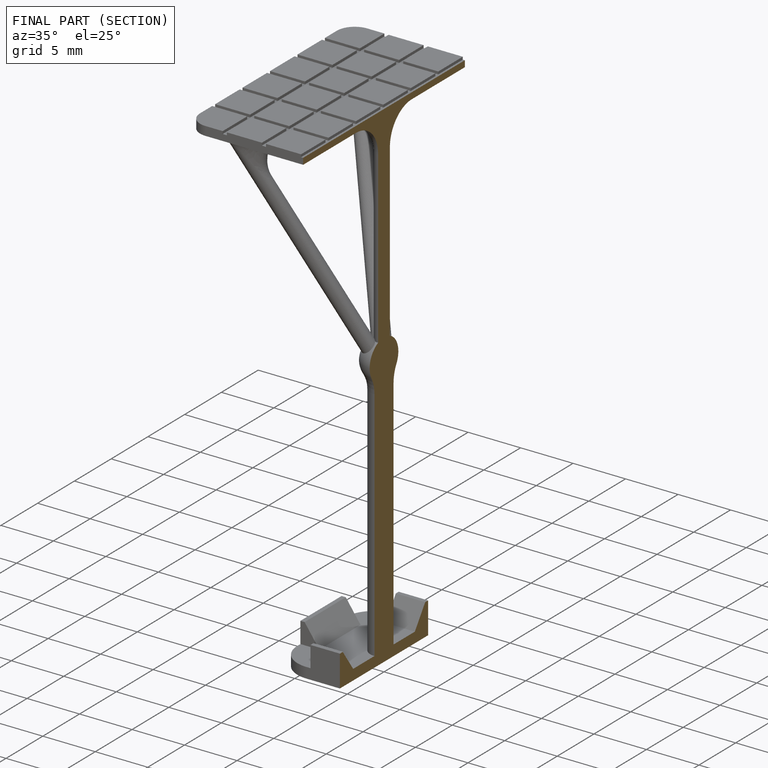
[diagram: finished part — half-section view (interior)]
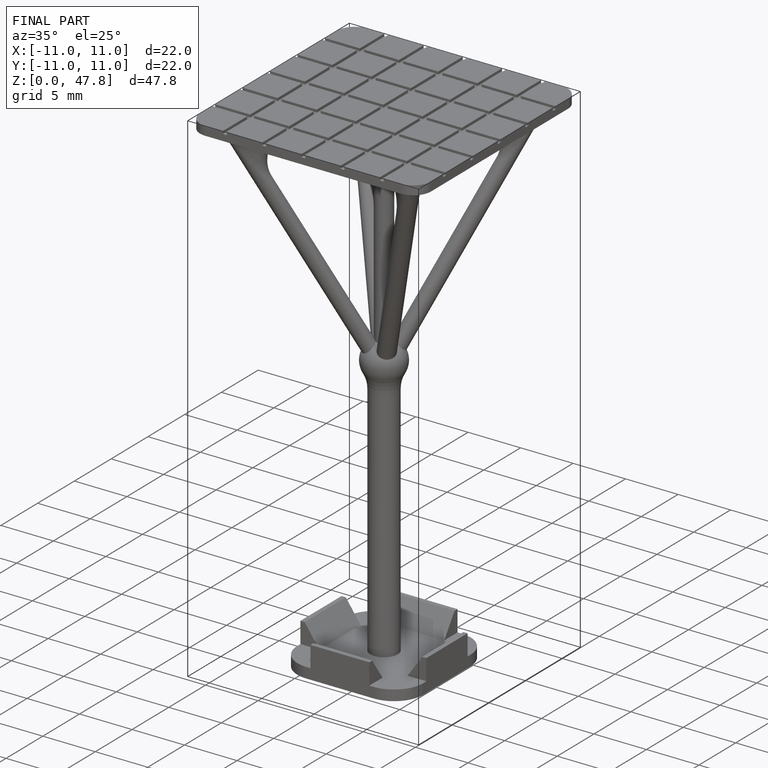
[diagram: finished part — iso view with bounding-box wireframe]
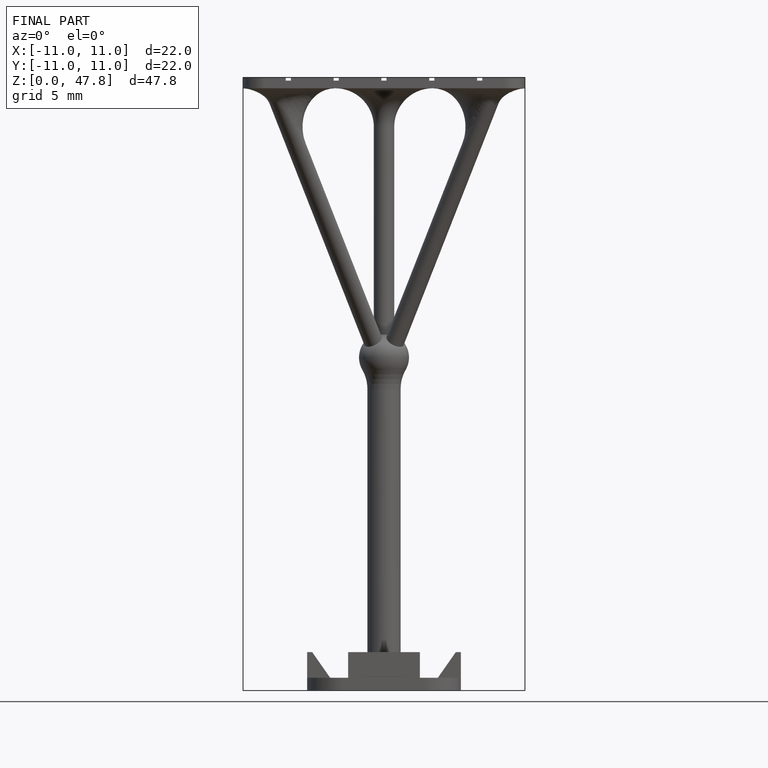
[diagram: finished part — front view with bounding-box wireframe]
